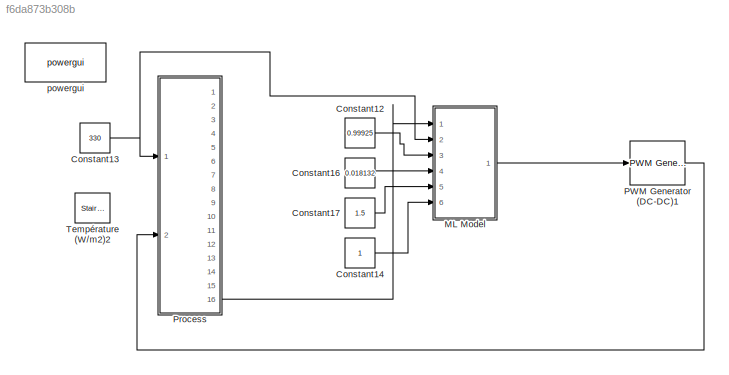
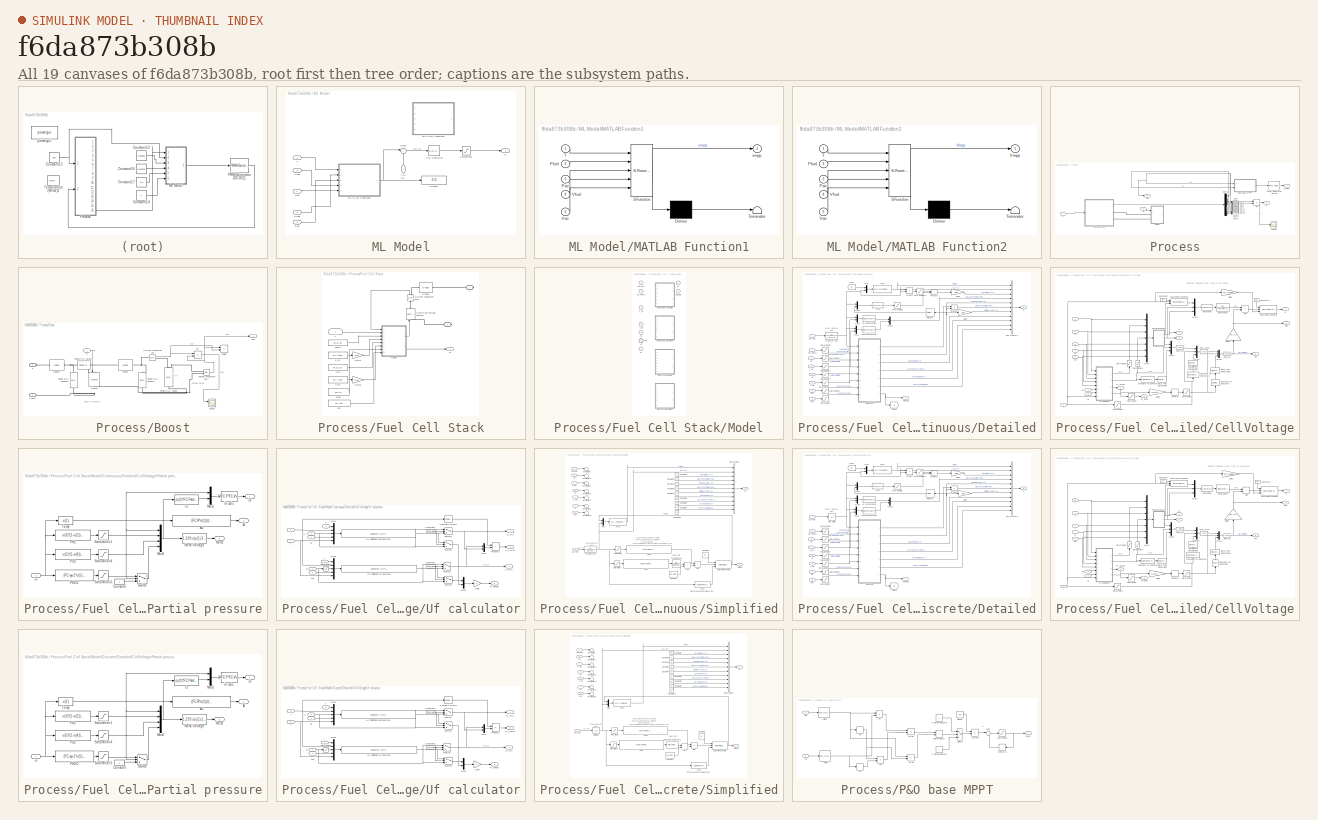
[diagram: thumbnail index - all 19 canvases of the model, root first then tree order]
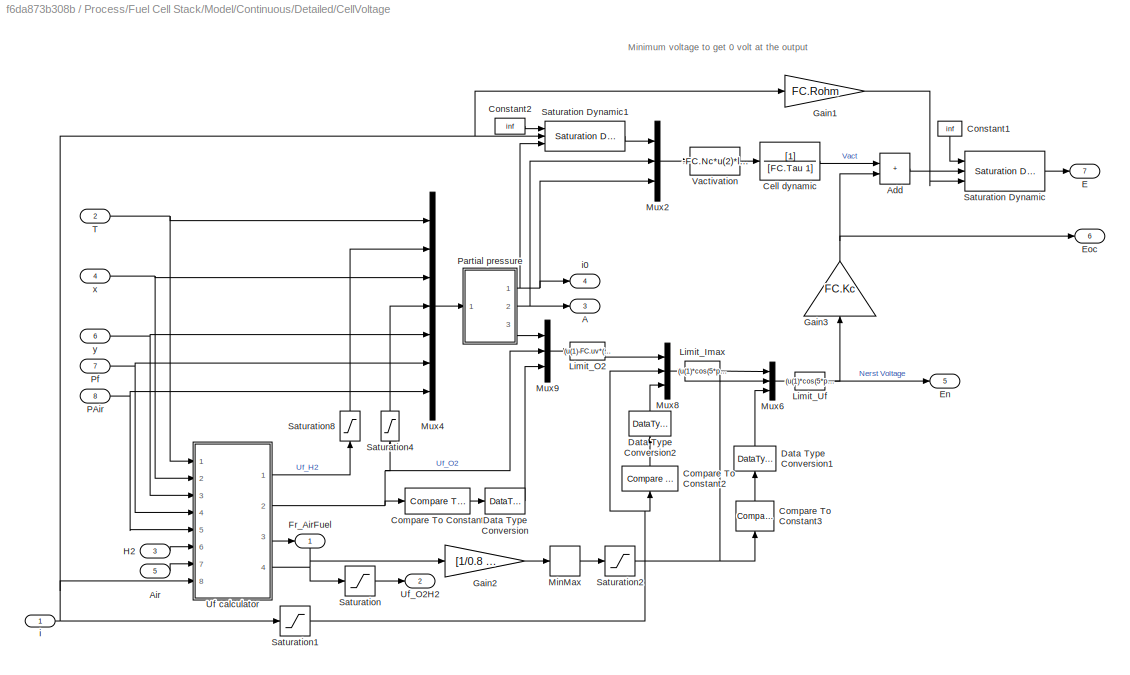
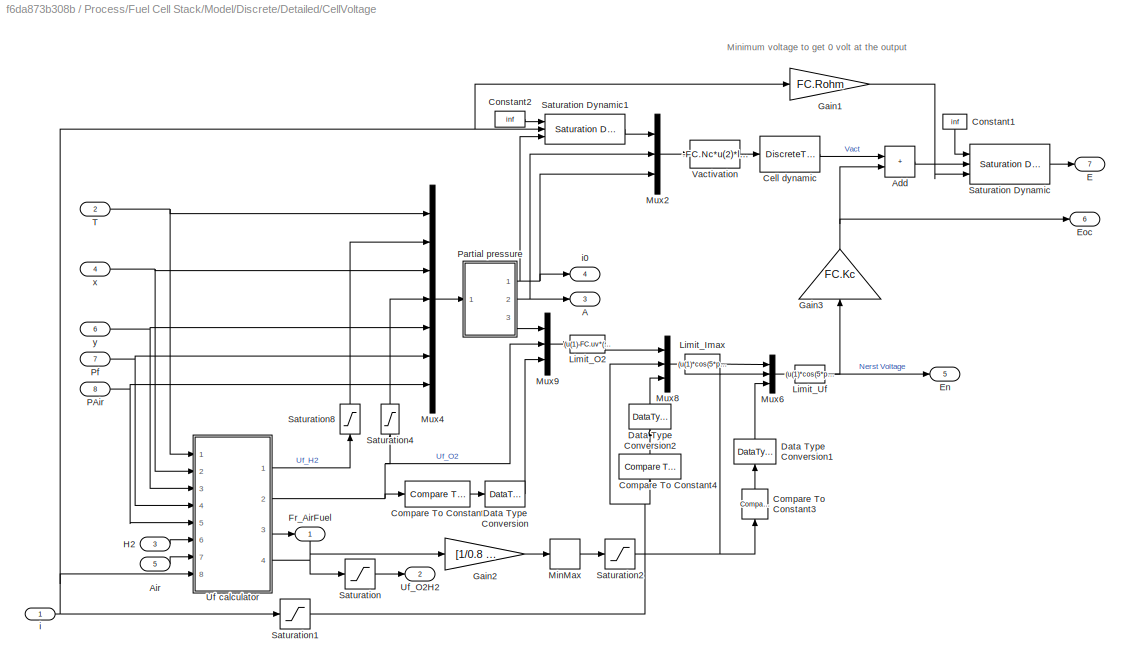
MODEL slx_f6da873b308b
KIND model
CONFIG AbsTol = auto
CONFIG EnableMultiTasking = off
CONFIG FixedStep = 1e-6
CONFIG MaxStep = auto
CONFIG MinStep = auto
CONFIG RelTol = 1e-3
CONFIG SampleTimeConstraint = Unconstrained
CONFIG SolverName = FixedStepAuto
CONFIG StartTime = 0.0
CONFIG StopTime = 0.3
BLOCK [Constant] Constant12
  Value = 0.99925
BLOCK [Constant] Constant13
  Value = 330
BLOCK [Constant] Constant14
BLOCK [Constant] Constant16
  Value = 0.018132
BLOCK [Constant] Constant17
  Value = 1.5
BLOCK [SubSystem] ML Model
  Ports = [6, 1]
BLOCK [Outport] ML Model/D
BLOCK [Display] ML Model/Display
  Decimation = 1
  Ports = [1]
BLOCK [SubSystem] ML Model/MATLAB Function1
  ErrorFcn = Stateflow.Translate.translate
  PermitHierarchicalResolution = ExplicitOnly
  Ports = [5, 1]
  SFBlockType = MATLAB Function
  TreatAsAtomicUnit = on
BLOCK [Demux] ML Model/MATLAB Function1/ Demux 
  Outputs = 1
  Ports = [1, 1]
BLOCK [S-Function] ML Model/MATLAB Function1/ SFunction 
  EnableBusSupport = on
  FunctionName = sf_sfun
  PortCounts = [5 2]
  Ports = [5, 2]
  SFcnIsStateOwnerBlock = off
  SFunctionDeploymentMode = off
  Tag = Stateflow S-Function 3
BLOCK [Terminator] ML Model/MATLAB Function1/ Terminator 
BLOCK [Inport] ML Model/MATLAB Function1/Pair
  Port = 3
BLOCK [Inport] ML Model/MATLAB Function1/Pfuel
  Port = 2
BLOCK [Inport] ML Model/MATLAB Function1/T
BLOCK [Inport] ML Model/MATLAB Function1/Vair
  Port = 5
BLOCK [Inport] ML Model/MATLAB Function1/Vfuel
  Port = 4
BLOCK [Outport] ML Model/MATLAB Function1/vmpp
BLOCK [SubSystem] ML Model/MATLAB Function2
  Commented = on
  ErrorFcn = Stateflow.Translate.translate
  PermitHierarchicalResolution = ExplicitOnly
  Ports = [5, 1]
  SFBlockType = MATLAB Function
  TreatAsAtomicUnit = on
BLOCK [Demux] ML Model/MATLAB Function2/ Demux 
  Outputs = 1
  Ports = [1, 1]
BLOCK [S-Function] ML Model/MATLAB Function2/ SFunction 
  EnableBusSupport = on
  FunctionName = sf_sfun
  PortCounts = [5 2]
  Ports = [5, 2]
  SFcnIsStateOwnerBlock = off
  SFunctionDeploymentMode = off
  Tag = Stateflow S-Function 2
BLOCK [Terminator] ML Model/MATLAB Function2/ Terminator 
BLOCK [Inport] ML Model/MATLAB Function2/Pair
  Port = 3
BLOCK [Inport] ML Model/MATLAB Function2/Pfuel
  Port = 2
BLOCK [Inport] ML Model/MATLAB Function2/T
BLOCK [Inport] ML Model/MATLAB Function2/Vair
  Port = 5
BLOCK [Inport] ML Model/MATLAB Function2/Vfuel
  Port = 4
BLOCK [Outport] ML Model/MATLAB Function2/Vmpp
BLOCK [Reference] ML Model/PID Controller  REF=pid_lib/PID Controller
  Ports = [1, 1]
  SourceBlock = pid_lib/PID Controller
  SourceType = PID 1dof
BLOCK [Inport] ML Model/Pair
  Port = 6
BLOCK [Inport] ML Model/Pfuel
  Port = 5
BLOCK [Saturate] ML Model/Saturation1
  LowerLimit = 0.1
  UpperLimit = 0.9
BLOCK [Sum] ML Model/Sum2
  Inputs = |+-
  Ports = [2, 1]
BLOCK [Inport] ML Model/T
  Port = 2
BLOCK [Inport] ML Model/Vair
  Port = 4
BLOCK [Inport] ML Model/Vfuel
  Port = 3
BLOCK [Inport] ML Model/Vin
  NameLocation = right
BLOCK [Reference] PWM Generator (DC-DC)1  REF=powerlib_meascontrol/Pulse & Signal Generators/PWM Generator (DC-DC)
  Ports = [1, 1]
  SourceBlock = powerlib_meascontrol/Pulse & Signal Generators/PWM Generator (DC-DC)
  SourceType = PWM Generator (DC-DC)
BLOCK [SubSystem] Process
  Ports = [2, 16]
BLOCK [SubSystem] Process/Boost
  Ports = [1, 1, 0, 0, 0, 2]
BLOCK [PMIOPort] Process/Boost/Conn2
  Port = 2
  Side = Left
BLOCK [Reference] Process/Boost/Current Measurement  REF=powerlib/Measurements/Current Measurement
  Ports = [0, 1, 0, 0, 0, 1, 1]
  SourceBlock = powerlib/Measurements/Current Measurement
  SourceType = Current Measurement
  UserDataPersistent = on
BLOCK [Reference] Process/Boost/Diode  REF=powerlib/Power Electronics/Diode
  Ports = [0, 0, 0, 0, 0, 1, 1]
  SourceBlock = powerlib/Power Electronics/Diode
  SourceType = Diode
BLOCK [Reference] Process/Boost/Diode1  REF=powerlib/Power Electronics/Diode
  Ports = [0, 0, 0, 0, 0, 1, 1]
  SourceBlock = powerlib/Power Electronics/Diode
  SourceType = Diode
BLOCK [Product] Process/Boost/Divide
  Inputs = */
  Ports = [2, 1]
BLOCK [Product] Process/Boost/E1
  Inputs = **
  NameLocation = top
  Ports = [2, 1]
BLOCK [Reference] Process/Boost/Mosfet  REF=powerlib/Power Electronics/Mosfet
  NameLocation = left
  Ports = [1, 0, 0, 0, 0, 1, 1]
  SourceBlock = powerlib/Power Electronics/Mosfet
  SourceType = Mosfet
BLOCK [Scope] Process/Boost/Scope
  Floating = off
  NumInputPorts = 2
  Ports = [2]
  ScopeSpecificationString = Simulink.scopes.TimeScopeBlockCfg('CurrentConfiguration', extmgr.ConfigurationSet(extmgr.Configuration('Core','General UI',true),extmgr.Configuration('Sources','WiredSimulink',true),extmgr.Configuration('Visuals','Time Domain',true,'SerializedDisplays',{struct('MinYLimReal','-250.3374','MaxYLimReal','2253.0368','YLabelReal','','MinYLimMag','0','MaxYLimMag','2253.0368','LegendVisibility','On','XGri...<+1303ch>
BLOCK [Reference] Process/Boost/Series RLC Branch  REF=powerlib/Elements/Series RLC Branch
  Ports = [0, 0, 0, 0, 0, 1, 1]
  SourceBlock = powerlib/Elements/Series RLC Branch
  SourceType = Series RLC Branch
BLOCK [Reference] Process/Boost/Series RLC Branch1  REF=powerlib/Elements/Series RLC Branch
  NameLocation = left
  Ports = [0, 0, 0, 0, 0, 1, 1]
  SourceBlock = powerlib/Elements/Series RLC Branch
  SourceType = Series RLC Branch
BLOCK [Reference] Process/Boost/Series RLC Branch4  REF=powerlib/Elements/Series RLC Branch
  NameLocation = left
  Ports = [0, 0, 0, 0, 0, 1, 1]
  SourceBlock = powerlib/Elements/Series RLC Branch
  SourceType = Series RLC Branch
BLOCK [Reference] Process/Boost/Series RLC Load1  REF=powerlib/Elements/Series RLC Load
  AttributesFormatString = \n
  NameLocation = left
  Ports = [0, 0, 0, 0, 0, 1, 1]
  SourceBlock = powerlib/Elements/Series RLC Load
  SourceType = Series RLC Load
BLOCK [Reference] Process/Boost/Voltage Measurement1  REF=powerlib/Measurements/Voltage Measurement
  Ports = [0, 1, 0, 0, 0, 2]
  SourceBlock = powerlib/Measurements/Voltage Measurement
  SourceType = Voltage Measurement
  UserDataPersistent = on
BLOCK [Outport] Process/Boost/Vout
BLOCK [PMIOPort] Process/Boost/a
  Side = Left
BLOCK [Inport] Process/Boost/g
BLOCK [Outport] Process/D_P&O
BLOCK [Demux] Process/Demux
  DisplayOption = none
  Outputs = 15
  Ports = [1, 15]
BLOCK [SubSystem] Process/Fuel Cell Stack
  AncestorBlock = sps_lib/Sources/Fuel Cell Stack
  CloseFcn = sps_rtmsupport('CloseFcn',gcbh);
  CopyFcn = sps_rtmsupport('CopyFcn',gcbh);
  DeleteFcn = sps_rtmsupport('DeleteFcn',gcbh);
  DialogController = POWERSYS.PowerSysDialog
  LoadFcn = sps_rtmsupport('LoadFcn',gcbh);FuelCellLoadFcn(gcb)
  ModelCloseFcn = sps_rtmsupport('ModelCloseFcn',gcbh);
  NameChangeFcn = sps_rtmsupport('NameChangeFcn',gcbh);
  OpenFcn = sps_rtmsupport('OpenFcn',gcbh, [1 2 3 13 14 15 16 17 18 19 20]);
  Ports = [1, 1, 0, 0, 0, 0, 2]
  PostSaveFcn = sps_rtmsupport('PostSaveFcn',gcbh);
  PreCopyFcn = sps_rtmsupport('PreCopyFcn',gcbh);
  PreDeleteFcn = sps_rtmsupport('PreDeleteFcn',gcbh);
  PreSaveFcn = sps_rtmsupport('PreSaveFcn',gcbh);
  StartFcn = sps_rtmsupport('StartFcn',gcbh);
  StopFcn = sps_rtmsupport('StopFcn',gcbh);
  UndoDeleteFcn = sps_rtmsupport('UndoDeleteFcn',gcbh);
BLOCK [PMIOPort] Process/Fuel Cell Stack/+
  NameLocation = top
  Side = Right
  Tag = PMCPort
BLOCK [PMIOPort] Process/Fuel Cell Stack/-
  NameLocation = top
  Port = 2
  Side = Right
  Tag = PMCPort
BLOCK [Constant] Process/Fuel Cell Stack/AirFr
  Value = FC.Uf_O2
BLOCK [Reference] Process/Fuel Cell Stack/Controlled Voltage Source1  REF=powerlib/Electrical Sources/Controlled Voltage Source
  NameLocation = right
  Ports = [1, 0, 0, 0, 0, 1, 1]
  SourceBlock = powerlib/Electrical Sources/Controlled Voltage Source
  SourceType = Controlled Voltage Source
BLOCK [Reference] Process/Fuel Cell Stack/Current Measurement1  REF=powerlib/Measurements/Current Measurement
  NameLocation = right
  Ports = [0, 1, 0, 0, 0, 1, 1]
  SourceBlock = powerlib/Measurements/Current Measurement
  SourceType = Current Measurement
BLOCK [Reference] Process/Fuel Cell Stack/Diode1  REF=powerlib/Power Electronics/Diode
  Ports = [0, 0, 0, 0, 0, 1, 1]
  SourceBlock = powerlib/Power Electronics/Diode
  SourceType = Diode
BLOCK [Constant] Process/Fuel Cell Stack/FuelFr
  Value = FC.Uf_H2
BLOCK [Gain] Process/Fuel Cell Stack/Gain1
  Gain = 0.01
BLOCK [Gain] Process/Fuel Cell Stack/Gain3
  Gain = 0.01
BLOCK [SubSystem] Process/Fuel Cell Stack/Model
  AncestorBlock = sps_lib/Sources/Fuel Cell Stack/Model
  AttributesFormatString = %<BlockChoice>
  LabelModeActiveChoice = Discrete/Detailed
  Ports = [8, 2]
  Variant = on
  VariantControlMode = label
BLOCK [Inport] Process/Fuel Cell Stack/Model/Air
  Port = 5
BLOCK [SubSystem] Process/Fuel Cell Stack/Model/Continuous//Detailed
  NameLocation = top
  Ports = [8, 2]
  VariantControl = Continuous/Detailed
BLOCK [Inport] Process/Fuel Cell Stack/Model/Continuous//Detailed/Air
  NameLocation = top
  Port = 5
BLOCK [Fcn] Process/Fuel Cell Stack/Model/Continuous//Detailed/Air consumption
  Expr = 60000*FC.Nc*u(1)*FC.R*FC.Tstd/(4*FC.F*FC.Pstd*u(2))
BLOCK [BusCreator] Process/Fuel Cell Stack/Model/Continuous//Detailed/Bus Creator1
  DisplayOption = bar
  InheritFromInputs = on
  Inputs = 11
  Ports = [11, 1]
BLOCK [SubSystem] Process/Fuel Cell Stack/Model/Continuous//Detailed/CellVoltage
  Ports = [8, 7]
BLOCK [Outport] Process/Fuel Cell Stack/Model/Continuous//Detailed/CellVoltage/A
  Port = 3
  VectorParamsAs1DForOutWhenUnconnected = off
BLOCK [Sum] Process/Fuel Cell Stack/Model/Continuous//Detailed/CellVoltage/Add
  IconShape = rectangular
  Ports = [2, 1]
BLOCK [Inport] Process/Fuel Cell Stack/Model/Continuous//Detailed/CellVoltage/Air
  Port = 5
BLOCK [TransferFcn] Process/Fuel Cell Stack/Model/Continuous//Detailed/CellVoltage/Cell dynamic
  Denominator = [FC.Tau 1]
BLOCK [Reference] Process/Fuel Cell Stack/Model/Continuous//Detailed/CellVoltage/Compare To Constant  REF=simulink/Logic and Bit
Operations/Compare
To Constant
  Ports = [1, 1]
  SourceBlock = simulink/Logic and Bit\nOperations/Compare\nTo Constant
  SourceType = Compare To Constant
BLOCK [Reference] Process/Fuel Cell Stack/Model/Continuous//Detailed/CellVoltage/Compare To Constant2  REF=simulink/Logic and Bit
Operations/Compare
To Constant
  NameLocation = right
  Ports = [1, 1]
  SourceBlock = simulink/Logic and Bit\nOperations/Compare\nTo Constant
  SourceType = Compare To Constant
BLOCK [Reference] Process/Fuel Cell Stack/Model/Continuous//Detailed/CellVoltage/Compare To Constant3  REF=simulink/Logic and Bit
Operations/Compare
To Constant
  NameLocation = right
  Ports = [1, 1]
  SourceBlock = simulink/Logic and Bit\nOperations/Compare\nTo Constant
  SourceType = Compare To Constant
BLOCK [Constant] Process/Fuel Cell Stack/Model/Continuous//Detailed/CellVoltage/Constant1
  NameLocation = left
  Value = inf
BLOCK [Constant] Process/Fuel Cell Stack/Model/Continuous//Detailed/CellVoltage/Constant2
  Value = inf
BLOCK [DataTypeConversion] Process/Fuel Cell Stack/Model/Continuous//Detailed/CellVoltage/Data Type Conversion
  RndMeth = Floor
  SaturateOnIntegerOverflow = off
BLOCK [DataTypeConversion] Process/Fuel Cell Stack/Model/Continuous//Detailed/CellVoltage/Data Type Conversion1
  NameLocation = right
  RndMeth = Floor
  SaturateOnIntegerOverflow = off
BLOCK [DataTypeConversion] Process/Fuel Cell Stack/Model/Continuous//Detailed/CellVoltage/Data Type Conversion2
  NameLocation = right
  RndMeth = Floor
  SaturateOnIntegerOverflow = off
BLOCK [Outport] Process/Fuel Cell Stack/Model/Continuous//Detailed/CellVoltage/E
  Port = 7
  VectorParamsAs1DForOutWhenUnconnected = off
BLOCK [Outport] Process/Fuel Cell Stack/Model/Continuous//Detailed/CellVoltage/En
  Port = 5
  VectorParamsAs1DForOutWhenUnconnected = off
BLOCK [Outport] Process/Fuel Cell Stack/Model/Continuous//Detailed/CellVoltage/Eoc
  Port = 6
  VectorParamsAs1DForOutWhenUnconnected = off
BLOCK [Outport] Process/Fuel Cell Stack/Model/Continuous//Detailed/CellVoltage/Fr_AirFuel
  VectorParamsAs1DForOutWhenUnconnected = off
BLOCK [Gain] Process/Fuel Cell Stack/Model/Continuous//Detailed/CellVoltage/Gain1
  Gain = FC.Rohm
  NameLocation = top
BLOCK [Gain] Process/Fuel Cell Stack/Model/Continuous//Detailed/CellVoltage/Gain2
  Gain = [1/0.8 1]
  NameLocation = top
BLOCK [Gain] Process/Fuel Cell Stack/Model/Continuous//Detailed/CellVoltage/Gain3
  Gain = FC.Kc
  NameLocation = left
BLOCK [Inport] Process/Fuel Cell Stack/Model/Continuous//Detailed/CellVoltage/H2
  NameLocation = top
  Port = 3
BLOCK [Fcn] Process/Fuel Cell Stack/Model/Continuous//Detailed/CellVoltage/Limit_Imax
  Expr = (u(1)*cos(5*pi/2*(u(2)/FC.Imax-1)))*u(3)+u(1)*(1-u(3) )
  NameLocation = top
BLOCK [Fcn] Process/Fuel Cell Stack/Model/Continuous//Detailed/CellVoltage/Limit_O2
  Expr = (u(1)-FC.uv*(u(2)-FC.Uf_O2)/(FC.Kc*(FC.ufO2max-FC.Uf_O2)))*u(3)+ u(1)*(1-u(3))
BLOCK [Fcn] Process/Fuel Cell Stack/Model/Continuous//Detailed/CellVoltage/Limit_Uf
  Expr = (u(1)*cos(5*pi/2*(u(2)-1)))*u(3)+u(1)*(1-u(3))
BLOCK [MinMax] Process/Fuel Cell Stack/Model/Continuous//Detailed/CellVoltage/MinMax
  Function = max
  Ports = [1, 1]
BLOCK [Mux] Process/Fuel Cell Stack/Model/Continuous//Detailed/CellVoltage/Mux2
  DisplayOption = bar
  Inputs = 3
  Ports = [3, 1]
BLOCK [Mux] Process/Fuel Cell Stack/Model/Continuous//Detailed/CellVoltage/Mux4
  DisplayOption = bar
  Inputs = 7
  Ports = [7, 1]
BLOCK [Mux] Process/Fuel Cell Stack/Model/Continuous//Detailed/CellVoltage/Mux6
  DisplayOption = bar
  Inputs = 3
  Ports = [3, 1]
BLOCK [Mux] Process/Fuel Cell Stack/Model/Continuous//Detailed/CellVoltage/Mux8
  DisplayOption = bar
  Inputs = 3
  Ports = [3, 1]
BLOCK [Mux] Process/Fuel Cell Stack/Model/Continuous//Detailed/CellVoltage/Mux9
  DisplayOption = bar
  Inputs = 3
  Ports = [3, 1]
BLOCK [Inport] Process/Fuel Cell Stack/Model/Continuous//Detailed/CellVoltage/PAir
  Port = 8
BLOCK [SubSystem] Process/Fuel Cell Stack/Model/Continuous//Detailed/CellVoltage/Partial pressure
  Ports = [1, 3]
BLOCK [Outport] Process/Fuel Cell Stack/Model/Continuous//Detailed/CellVoltage/Partial pressure/A
  Port = 2
  VectorParamsAs1DForOutWhenUnconnected = off
BLOCK [Fcn] Process/Fuel Cell Stack/Model/Continuous//Detailed/CellVoltage/Partial pressure/A2
  Expr = (FC.R*u(1))/(2*FC.alpha*FC.F)
BLOCK [Constant] Process/Fuel Cell Stack/Model/Continuous//Detailed/CellVoltage/Partial pressure/Constant
BLOCK [Fcn] Process/Fuel Cell Stack/Model/Continuous//Detailed/CellVoltage/Partial pressure/Cr
  Expr = (u(2)*FC.Pstd+u(3)*FC.Pstd)/(FC.R*u(1))
BLOCK [Mux] Process/Fuel Cell Stack/Model/Continuous//Detailed/CellVoltage/Partial pressure/Mux1
  DisplayOption = bar
  Inputs = 2
  Ports = [2, 1]
BLOCK [Mux] Process/Fuel Cell Stack/Model/Continuous//Detailed/CellVoltage/Partial pressure/Mux2
  DisplayOption = bar
  Ports = [4, 1]
BLOCK [Outport] Process/Fuel Cell Stack/Model/Continuous//Detailed/CellVoltage/Partial pressure/Nerst
  Port = 3
  VectorParamsAs1DForOutWhenUnconnected = off
BLOCK [Fcn] Process/Fuel Cell Stack/Model/Continuous//Detailed/CellVoltage/Partial pressure/Nerst Voltage
  Expr = 1.229+(u(1)-298.15)*(-44.43/(FC.z*FC.F))+(FC.R*u(1)/(FC.z*FC.F))*(log(u(2)*sqrt(u(3))/u(4)))
BLOCK [Fcn] Process/Fuel Cell Stack/Model/Continuous//Detailed/CellVoltage/Partial pressure/PH2
  Expr = u(3)*(1-u(2))*u(6)
BLOCK [Fcn] Process/Fuel Cell Stack/Model/Continuous//Detailed/CellVoltage/Partial pressure/PH2O
  Expr = (FC.xy+2*u(5)*u(4))*u(7)
BLOCK [Fcn] Process/Fuel Cell Stack/Model/Continuous//Detailed/CellVoltage/Partial pressure/PO2
  Expr = u(5)*(1-u(4))*u(7)
BLOCK [Saturate] Process/Fuel Cell Stack/Model/Continuous//Detailed/CellVoltage/Partial pressure/Saturation1
  LowerLimit = 0.0001
  UpperLimit = inf
BLOCK [Saturate] Process/Fuel Cell Stack/Model/Continuous//Detailed/CellVoltage/Partial pressure/Saturation4
  LowerLimit = 0.0001
  UpperLimit = inf
BLOCK [Saturate] Process/Fuel Cell Stack/Model/Continuous//Detailed/CellVoltage/Partial pressure/Saturation5
  LowerLimit = 0.0001
  UpperLimit = inf
BLOCK [Switch] Process/Fuel Cell Stack/Model/Continuous//Detailed/CellVoltage/Partial pressure/Switch
  InputSameDT = off
  SaturateOnIntegerOverflow = off
  Threshold = 273+100
BLOCK [Fcn] Process/Fuel Cell Stack/Model/Continuous//Detailed/CellVoltage/Partial pressure/Temp
  Expr = u(1)
  NameLocation = top
BLOCK [Outport] Process/Fuel Cell Stack/Model/Continuous//Detailed/CellVoltage/Partial pressure/i0
  VectorParamsAs1DForOutWhenUnconnected = off
BLOCK [Fcn] Process/Fuel Cell Stack/Model/Continuous//Detailed/CellVoltage/Partial pressure/i0 calc
  Expr = 2*FC.F*FC.k*u(1)*u(2)*exp(-FC.Dg/(FC.R*u(1)))/FC.h
BLOCK [Inport] Process/Fuel Cell Stack/Model/Continuous//Detailed/CellVoltage/Partial pressure/in
BLOCK [Inport] Process/Fuel Cell Stack/Model/Continuous//Detailed/CellVoltage/Pf
  Port = 7
BLOCK [Saturate] Process/Fuel Cell Stack/Model/Continuous//Detailed/CellVoltage/Saturation
  LowerLimit = 0.0001
  UpperLimit = 0.9999
BLOCK [Reference] Process/Fuel Cell Stack/Model/Continuous//Detailed/CellVoltage/Saturation Dynamic  REF=simulink/Discontinuities/Saturation
Dynamic
  Ports = [3, 1]
  SourceBlock = simulink/Discontinuities/Saturation\nDynamic
  SourceType = Saturation Dynamic
BLOCK [Reference] Process/Fuel Cell Stack/Model/Continuous//Detailed/CellVoltage/Saturation Dynamic1  REF=simulink/Discontinuities/Saturation
Dynamic
  Ports = [3, 1]
  SourceBlock = simulink/Discontinuities/Saturation\nDynamic
  SourceType = Saturation Dynamic
BLOCK [Saturate] Process/Fuel Cell Stack/Model/Continuous//Detailed/CellVoltage/Saturation1
  LowerLimit = 0
  UpperLimit = FC.Imax*1.2
BLOCK [Saturate] Process/Fuel Cell Stack/Model/Continuous//Detailed/CellVoltage/Saturation2
  LowerLimit = 0
  UpperLimit = 1.2
BLOCK [Saturate] Process/Fuel Cell Stack/Model/Continuous//Detailed/CellVoltage/Saturation4
  LowerLimit = 0
  NameLocation = right
  UpperLimit = FC.Uf_O2
BLOCK [Saturate] Process/Fuel Cell Stack/Model/Continuous//Detailed/CellVoltage/Saturation8
  LowerLimit = 0
  NameLocation = right
  UpperLimit = FC.Uf_H2
BLOCK [Inport] Process/Fuel Cell Stack/Model/Continuous//Detailed/CellVoltage/T
  Port = 2
BLOCK [SubSystem] Process/Fuel Cell Stack/Model/Continuous//Detailed/CellVoltage/Uf calculator
  Ports = [8, 4]
BLOCK [Inport] Process/Fuel Cell Stack/Model/Continuous//Detailed/CellVoltage/Uf calculator/Air
  NameLocation = top
  Port = 7
BLOCK [Reference] Process/Fuel Cell Stack/Model/Continuous//Detailed/CellVoltage/Uf calculator/Compare To Zero  REF=simulink/Logic and Bit
Operations/Compare
To Zero
  Ports = [1, 1]
  SourceBlock = simulink/Logic and Bit\nOperations/Compare\nTo Zero
  SourceType = Compare To Zero
BLOCK [Constant] Process/Fuel Cell Stack/Model/Continuous//Detailed/CellVoltage/Uf calculator/Constant1
  Value = FC.sel_UfH2
BLOCK [Constant] Process/Fuel Cell Stack/Model/Continuous//Detailed/CellVoltage/Uf calculator/Constant2
  Value = FC.sel_UfO2
BLOCK [Outport] Process/Fuel Cell Stack/Model/Continuous//Detailed/CellVoltage/Uf calculator/Fr_AirFuel
  Port = 3
  VectorParamsAs1DForOutWhenUnconnected = off
BLOCK [Gain] Process/Fuel Cell Stack/Model/Continuous//Detailed/CellVoltage/Uf calculator/Gain
BLOCK [Inport] Process/Fuel Cell Stack/Model/Continuous//Detailed/CellVoltage/Uf calculator/H2
  NameLocation = top
  Port = 6
BLOCK [Fcn] Process/Fuel Cell Stack/Model/Continuous//Detailed/CellVoltage/Uf calculator/H2 utilization Fuel flowrate
  Expr = 60000*FC.Nc*u(2)*FC.R*u(5)/(FC.z*FC.F*u(4)*FC.Pstd*u(3)*u(1))
BLOCK [Mux] Process/Fuel Cell Stack/Model/Continuous//Detailed/CellVoltage/Uf calculator/Mux1
  DisplayOption = bar
  Inputs = 5
  Ports = [5, 1]
BLOCK [Mux] Process/Fuel Cell Stack/Model/Continuous//Detailed/CellVoltage/Uf calculator/Mux5
  DisplayOption = bar
  Inputs = 5
  Ports = [5, 1]
BLOCK [Mux] Process/Fuel Cell Stack/Model/Continuous//Detailed/CellVoltage/Uf calculator/Mux6
  DisplayOption = bar
  Inputs = 2
  Ports = [2, 1]
BLOCK [Mux] Process/Fuel Cell Stack/Model/Continuous//Detailed/CellVoltage/Uf calculator/Mux7
  DisplayOption = bar
  Inputs = 2
  Ports = [2, 1]
BLOCK [Fcn] Process/Fuel Cell Stack/Model/Continuous//Detailed/CellVoltage/Uf calculator/O2 utilization Air flowrate
  Expr = 60000*FC.Nc*u(2)*FC.R*u(5)/(4*FC.F*u(4)*FC.Pstd*u(3)*u(1))
BLOCK [Inport] Process/Fuel Cell Stack/Model/Continuous//Detailed/CellVoltage/Uf calculator/PAir
  Port = 5
BLOCK [Inport] Process/Fuel Cell Stack/Model/Continuous//Detailed/CellVoltage/Uf calculator/Pf
  Port = 4
BLOCK [Product] Process/Fuel Cell Stack/Model/Continuous//Detailed/CellVoltage/Uf calculator/Product2
  Ports = [2, 1]
  RndMeth = Zero
BLOCK [Saturate] Process/Fuel Cell Stack/Model/Continuous//Detailed/CellVoltage/Uf calculator/Saturation3
  LowerLimit = FC.AirFr_Max*0.01
  UpperLimit = inf
BLOCK [Switch] Process/Fuel Cell Stack/Model/Continuous//Detailed/CellVoltage/Uf calculator/Switch1
  Criteria = u2 > Threshold
  InputSameDT = off
  SaturateOnIntegerOverflow = off
  Threshold = 0.5
BLOCK [Switch] Process/Fuel Cell Stack/Model/Continuous//Detailed/CellVoltage/Uf calculator/Switch2
  Criteria = u2 > Threshold
  InputSameDT = off
  SaturateOnIntegerOverflow = off
  Threshold = 0.5
BLOCK [Switch] Process/Fuel Cell Stack/Model/Continuous//Detailed/CellVoltage/Uf calculator/Switch3
  Criteria = u2 > Threshold
  InputSameDT = off
  SaturateOnIntegerOverflow = off
  Threshold = 0.5
BLOCK [Switch] Process/Fuel Cell Stack/Model/Continuous//Detailed/CellVoltage/Uf calculator/Switch4
  Criteria = u2 > Threshold
  InputSameDT = off
  SaturateOnIntegerOverflow = off
  Threshold = 0.5
BLOCK [Inport] Process/Fuel Cell Stack/Model/Continuous//Detailed/CellVoltage/Uf calculator/T
BLOCK [Outport] Process/Fuel Cell Stack/Model/Continuous//Detailed/CellVoltage/Uf calculator/Uf_H2
  VectorParamsAs1DForOutWhenUnconnected = off
BLOCK [Outport] Process/Fuel Cell Stack/Model/Continuous//Detailed/CellVoltage/Uf calculator/Uf_O2
  Port = 2
  VectorParamsAs1DForOutWhenUnconnected = off
BLOCK [Outport] Process/Fuel Cell Stack/Model/Continuous//Detailed/CellVoltage/Uf calculator/Uf_O2H2
  Port = 4
  VectorParamsAs1DForOutWhenUnconnected = off
BLOCK [Inport] Process/Fuel Cell Stack/Model/Continuous//Detailed/CellVoltage/Uf calculator/i
  Port = 8
BLOCK [Inport] Process/Fuel Cell Stack/Model/Continuous//Detailed/CellVoltage/Uf calculator/x
  NameLocation = top
  Port = 2
BLOCK [Inport] Process/Fuel Cell Stack/Model/Continuous//Detailed/CellVoltage/Uf calculator/y
  NameLocation = top
  Port = 3
BLOCK [Outport] Process/Fuel Cell Stack/Model/Continuous//Detailed/CellVoltage/Uf_O2H2
  Port = 2
  VectorParamsAs1DForOutWhenUnconnected = off
BLOCK [Fcn] Process/Fuel Cell Stack/Model/Continuous//Detailed/CellVoltage/Vactivation
  Expr = -FC.Nc*u(2)*ln(u(1))+FC.Nc*u(2)*ln(u(3))
BLOCK [Inport] Process/Fuel Cell Stack/Model/Continuous//Detailed/CellVoltage/i
BLOCK [Outport] Process/Fuel Cell Stack/Model/Continuous//Detailed/CellVoltage/i0
  NameLocation = top
  Port = 4
  VectorParamsAs1DForOutWhenUnconnected = off
BLOCK [Inport] Process/Fuel Cell Stack/Model/Continuous//Detailed/CellVoltage/x
  Port = 4
BLOCK [Inport] Process/Fuel Cell Stack/Model/Continuous//Detailed/CellVoltage/y
  Port = 6
BLOCK [Inport] Process/Fuel Cell Stack/Model/Continuous//Detailed/Current
  NameLocation = top
BLOCK [Fcn] Process/Fuel Cell Stack/Model/Continuous//Detailed/Fcn2
  Expr = u(1)-FC.Rohm*u(2)
BLOCK [Fcn] Process/Fuel Cell Stack/Model/Continuous//Detailed/Fcn3
  Expr = FC.Nc*u(1)/(FC.z*FC.F*u(2))*FC.Dh0
BLOCK [From] Process/Fuel Cell Stack/Model/Continuous//Detailed/From
  GotoTag = E
  NameLocation = top
BLOCK [Fcn] Process/Fuel Cell Stack/Model/Continuous//Detailed/Fuel consumption
  Expr = 60000*FC.Nc*u(1)*FC.R*FC.Tstd/(FC.z*FC.F*FC.Pstd*u(2))
BLOCK [Gain] Process/Fuel Cell Stack/Model/Continuous//Detailed/Gain1
  Gain = 100
  NameLocation = top
BLOCK [Gain] Process/Fuel Cell Stack/Model/Continuous//Detailed/Gain3
  Gain = 100
  NameLocation = top
BLOCK [Goto] Process/Fuel Cell Stack/Model/Continuous//Detailed/Goto
  GotoTag = E
BLOCK [Inport] Process/Fuel Cell Stack/Model/Continuous//Detailed/H2
  NameLocation = top
  Port = 3
BLOCK [Mux] Process/Fuel Cell Stack/Model/Continuous//Detailed/Mux
  DisplayOption = bar
  Inputs = 2
  Ports = [2, 1]
BLOCK [Mux] Process/Fuel Cell Stack/Model/Continuous//Detailed/Mux1
  DisplayOption = bar
  Inputs = 2
  Ports = [2, 1]
BLOCK [Mux] Process/Fuel Cell Stack/Model/Continuous//Detailed/Mux3
  DisplayOption = bar
  Inputs = 2
  Ports = [2, 1]
BLOCK [Mux] Process/Fuel Cell Stack/Model/Continuous//Detailed/Mux4
  DisplayOption = bar
  Inputs = 2
  Ports = [2, 1]
BLOCK [Mux] Process/Fuel Cell Stack/Model/Continuous//Detailed/Mux6
  DisplayOption = bar
  Inputs = 2
  Ports = [2, 1]
BLOCK [Inport] Process/Fuel Cell Stack/Model/Continuous//Detailed/Op Temp
  NameLocation = top
  Port = 2
BLOCK [Inport] Process/Fuel Cell Stack/Model/Continuous//Detailed/PAir
  NameLocation = top
  Port = 8
BLOCK [Inport] Process/Fuel Cell Stack/Model/Continuous//Detailed/Pf
  NameLocation = top
  Port = 7
BLOCK [Product] Process/Fuel Cell Stack/Model/Continuous//Detailed/Product
  Ports = [2, 1]
  RndMeth = Zero
BLOCK [Product] Process/Fuel Cell Stack/Model/Continuous//Detailed/Product1
  Inputs = */
  Ports = [2, 1]
  RndMeth = Zero
BLOCK [Product] Process/Fuel Cell Stack/Model/Continuous//Detailed/Product2
  Ports = [2, 1]
  RndMeth = Zero
BLOCK [Saturate] Process/Fuel Cell Stack/Model/Continuous//Detailed/Saturation1
  LowerLimit = 0.0001
  UpperLimit = 0.9999
BLOCK [Saturate] Process/Fuel Cell Stack/Model/Continuous//Detailed/Saturation2
  LowerLimit = 0.0001
  UpperLimit = 0.9999
BLOCK [Saturate] Process/Fuel Cell Stack/Model/Continuous//Detailed/Saturation3
  LowerLimit = 1e-6
  UpperLimit = inf
BLOCK [Saturate] Process/Fuel Cell Stack/Model/Continuous//Detailed/Saturation4
  LowerLimit = 1e-3
  UpperLimit = inf
BLOCK [Saturate] Process/Fuel Cell Stack/Model/Continuous//Detailed/Saturation6
  LowerLimit = 0.001
  UpperLimit = inf
BLOCK [Saturate] Process/Fuel Cell Stack/Model/Continuous//Detailed/Saturation7
  LowerLimit = 0.001
  UpperLimit = inf
BLOCK [Saturate] Process/Fuel Cell Stack/Model/Continuous//Detailed/Saturation8
  LowerLimit = 200
  UpperLimit = inf
BLOCK [Selector] Process/Fuel Cell Stack/Model/Continuous//Detailed/Selector
  IndexOptions = Index vector (dialog)
  Indices = [2]
  InputPortWidth = 2
  NameLocation = top
  OutputSizes = 1
  Ports = [1, 1]
BLOCK [TransferFcn] Process/Fuel Cell Stack/Model/Continuous//Detailed/Transfer Fcn
  Denominator = [1e-6 1]
BLOCK [Outport] Process/Fuel Cell Stack/Model/Continuous//Detailed/Voltage
  VectorParamsAs1DForOutWhenUnconnected = off
BLOCK [Outport] Process/Fuel Cell Stack/Model/Continuous//Detailed/m
  Port = 2
  VectorParamsAs1DForOutWhenUnconnected = off
BLOCK [Inport] Process/Fuel Cell Stack/Model/Continuous//Detailed/x_H2
  NameLocation = top
  Port = 4
BLOCK [Inport] Process/Fuel Cell Stack/Model/Continuous//Detailed/y_O2
  NameLocation = top
  Port = 6
BLOCK [Saturate] Process/Fuel Cell Stack/Model/Continuous//Detailed/zero avoider
  LinearizeAsGain = off
  LowerLimit = 1e-6
  UpperLimit = inf
BLOCK [Saturate] Process/Fuel Cell Stack/Model/Continuous//Detailed/zero avoider2
  LinearizeAsGain = off
  LowerLimit = 0
  UpperLimit = inf
BLOCK [SubSystem] Process/Fuel Cell Stack/Model/Continuous//Simplified
  NameLocation = top
  Ports = [8, 2]
  VariantControl = Continuous/Simplified
BLOCK [Sum] Process/Fuel Cell Stack/Model/Continuous//Simplified/Add1
  IconShape = rectangular
  Ports = [2, 1]
BLOCK [Inport] Process/Fuel Cell Stack/Model/Continuous//Simplified/Air
  NameLocation = top
  Port = 5
BLOCK [BusCreator] Process/Fuel Cell Stack/Model/Continuous//Simplified/Bus Creator1
  DisplayOption = bar
  InheritFromInputs = on
  Inputs = 11
  Ports = [11, 1]
BLOCK [Constant] Process/Fuel Cell Stack/Model/Continuous//Simplified/Constant
  Value = FC.OCV
BLOCK [Constant] Process/Fuel Cell Stack/Model/Continuous//Simplified/Constant1
  Value = inf
BLOCK [Constant] Process/Fuel Cell Stack/Model/Continuous//Simplified/Constant10
  Value = 0
BLOCK [Constant] Process/Fuel Cell Stack/Model/Continuous//Simplified/Constant2
  Value = 0
BLOCK [Constant] Process/Fuel Cell Stack/Model/Continuous//Simplified/Constant3
  Value = 0
BLOCK [Constant] Process/Fuel Cell Stack/Model/Continuous//Simplified/Constant4
  Value = 0
BLOCK [Constant] Process/Fuel Cell Stack/Model/Continuous//Simplified/Constant5
  Value = 0
BLOCK [Constant] Process/Fuel Cell Stack/Model/Continuous//Simplified/Constant6
  Value = 0
BLOCK [Constant] Process/Fuel Cell Stack/Model/Continuous//Simplified/Constant7
  Value = 0
BLOCK [Constant] Process/Fuel Cell Stack/Model/Continuous//Simplified/Constant8
  Value = 0
BLOCK [Constant] Process/Fuel Cell Stack/Model/Continuous//Simplified/Constant9
  Value = 0
BLOCK [Inport] Process/Fuel Cell Stack/Model/Continuous//Simplified/Current
  NameLocation = top
BLOCK [Fcn] Process/Fuel Cell Stack/Model/Continuous//Simplified/Fcn1
  Expr = FC.Rohm*u(1)
BLOCK [Fcn] Process/Fuel Cell Stack/Model/Continuous//Simplified/Fcn2
  Expr = u(1)-FC.Rohm*u(2)
BLOCK [Inport] Process/Fuel Cell Stack/Model/Continuous//Simplified/H2
  NameLocation = top
  Port = 3
BLOCK [Product] Process/Fuel Cell Stack/Model/Continuous//Simplified/Mult
  Ports = [2, 1]
BLOCK [Mux] Process/Fuel Cell Stack/Model/Continuous//Simplified/Mux
  DisplayOption = bar
  Inputs = 2
  Ports = [2, 1]
BLOCK [Inport] Process/Fuel Cell Stack/Model/Continuous//Simplified/Op Temp
  NameLocation = top
  Port = 2
BLOCK [Inport] Process/Fuel Cell Stack/Model/Continuous//Simplified/PAir
  NameLocation = top
  Port = 8
BLOCK [Inport] Process/Fuel Cell Stack/Model/Continuous//Simplified/Pf
  NameLocation = top
  Port = 7
BLOCK [Reference] Process/Fuel Cell Stack/Model/Continuous//Simplified/Saturation Dynamic  REF=simulink/Discontinuities/Saturation
Dynamic
  Ports = [3, 1]
  SourceBlock = simulink/Discontinuities/Saturation\nDynamic
  SourceType = Saturation Dynamic
BLOCK [Saturate] Process/Fuel Cell Stack/Model/Continuous//Simplified/Saturation2
  LinearizeAsGain = off
  LowerLimit = FC.Il*FC.MaxCurRatio
  UpperLimit = FC.Il
BLOCK [Saturate] Process/Fuel Cell Stack/Model/Continuous//Simplified/Saturation5
  LinearizeAsGain = off
  LowerLimit = FC.i0nom
  UpperLimit = inf
BLOCK [Terminator] Process/Fuel Cell Stack/Model/Continuous//Simplified/Terminator
BLOCK [Terminator] Process/Fuel Cell Stack/Model/Continuous//Simplified/Terminator1
BLOCK [Terminator] Process/Fuel Cell Stack/Model/Continuous//Simplified/Terminator2
BLOCK [Terminator] Process/Fuel Cell Stack/Model/Continuous//Simplified/Terminator3
BLOCK [Terminator] Process/Fuel Cell Stack/Model/Continuous//Simplified/Terminator4
BLOCK [Terminator] Process/Fuel Cell Stack/Model/Continuous//Simplified/Terminator5
BLOCK [Terminator] Process/Fuel Cell Stack/Model/Continuous//Simplified/Terminator6
BLOCK [TransferFcn] Process/Fuel Cell Stack/Model/Continuous//Simplified/Transfer Fcn1
  Denominator = [FC.Tau 1]
BLOCK [TransferFcn] Process/Fuel Cell Stack/Model/Continuous//Simplified/Transfer Fcn2
  Denominator = [1e-6 1]
BLOCK [Fcn] Process/Fuel Cell Stack/Model/Continuous//Simplified/Vact
  Expr = -FC.NcAnom*ln(u(1))+FC.NcAnom*ln(FC.i0nom)
BLOCK [Fcn] Process/Fuel Cell Stack/Model/Continuous//Simplified/Vend
  Expr = cos(FC.Ksin*(u(1)/(FC.Il*FC.MaxCurRatio)-1))
BLOCK [Outport] Process/Fuel Cell Stack/Model/Continuous//Simplified/Voltage
  VectorParamsAs1DForOutWhenUnconnected = off
BLOCK [Outport] Process/Fuel Cell Stack/Model/Continuous//Simplified/m
  Port = 2
  VectorParamsAs1DForOutWhenUnconnected = off
BLOCK [Inport] Process/Fuel Cell Stack/Model/Continuous//Simplified/x_H2
  NameLocation = top
  Port = 4
BLOCK [Inport] Process/Fuel Cell Stack/Model/Continuous//Simplified/y_O2
  NameLocation = top
  Port = 6
BLOCK [Inport] Process/Fuel Cell Stack/Model/Current
BLOCK [SubSystem] Process/Fuel Cell Stack/Model/Discrete//Detailed
  NameLocation = top
  Ports = [8, 2]
  VariantControl = Discrete/Detailed
BLOCK [Inport] Process/Fuel Cell Stack/Model/Discrete//Detailed/Air
  NameLocation = top
  Port = 5
BLOCK [Fcn] Process/Fuel Cell Stack/Model/Discrete//Detailed/Air consumption
  Expr = 60000*FC.Nc*u(1)*FC.R*FC.Tstd/(4*FC.F*FC.Pstd*u(2))
BLOCK [BusCreator] Process/Fuel Cell Stack/Model/Discrete//Detailed/Bus Creator1
  DisplayOption = bar
  InheritFromInputs = on
  Inputs = 11
  Ports = [11, 1]
BLOCK [SubSystem] Process/Fuel Cell Stack/Model/Discrete//Detailed/CellVoltage
  Ports = [8, 7]
BLOCK [Outport] Process/Fuel Cell Stack/Model/Discrete//Detailed/CellVoltage/A
  Port = 3
  VectorParamsAs1DForOutWhenUnconnected = off
BLOCK [Sum] Process/Fuel Cell Stack/Model/Discrete//Detailed/CellVoltage/Add
  IconShape = rectangular
  Ports = [2, 1]
BLOCK [Inport] Process/Fuel Cell Stack/Model/Discrete//Detailed/CellVoltage/Air
  Port = 5
BLOCK [DiscreteTransferFcn] Process/Fuel Cell Stack/Model/Discrete//Detailed/CellVoltage/Cell dynamic
  Denominator = [1 -exp(-Ts/FC.Tau)]
  InputPortMap = u0
  Numerator = [1-exp(-Ts/FC.Tau)]
  Ports = [1, 1]
  SampleTime = Ts
BLOCK [Reference] Process/Fuel Cell Stack/Model/Discrete//Detailed/CellVoltage/Compare To Constant  REF=simulink/Logic and Bit
Operations/Compare
To Constant
  Ports = [1, 1]
  SourceBlock = simulink/Logic and Bit\nOperations/Compare\nTo Constant
  SourceType = Compare To Constant
BLOCK [Reference] Process/Fuel Cell Stack/Model/Discrete//Detailed/CellVoltage/Compare To Constant3  REF=simulink/Logic and Bit
Operations/Compare
To Constant
  NameLocation = right
  Ports = [1, 1]
  SourceBlock = simulink/Logic and Bit\nOperations/Compare\nTo Constant
  SourceType = Compare To Constant
BLOCK [Reference] Process/Fuel Cell Stack/Model/Discrete//Detailed/CellVoltage/Compare To Constant4  REF=simulink/Logic and Bit
Operations/Compare
To Constant
  NameLocation = right
  Ports = [1, 1]
  SourceBlock = simulink/Logic and Bit\nOperations/Compare\nTo Constant
  SourceType = Compare To Constant
BLOCK [Constant] Process/Fuel Cell Stack/Model/Discrete//Detailed/CellVoltage/Constant1
  NameLocation = left
  Value = inf
BLOCK [Constant] Process/Fuel Cell Stack/Model/Discrete//Detailed/CellVoltage/Constant2
  Value = inf
BLOCK [DataTypeConversion] Process/Fuel Cell Stack/Model/Discrete//Detailed/CellVoltage/Data Type Conversion
  RndMeth = Floor
  SaturateOnIntegerOverflow = off
BLOCK [DataTypeConversion] Process/Fuel Cell Stack/Model/Discrete//Detailed/CellVoltage/Data Type Conversion1
  NameLocation = right
  RndMeth = Floor
  SaturateOnIntegerOverflow = off
BLOCK [DataTypeConversion] Process/Fuel Cell Stack/Model/Discrete//Detailed/CellVoltage/Data Type Conversion2
  NameLocation = right
  RndMeth = Floor
  SaturateOnIntegerOverflow = off
BLOCK [Outport] Process/Fuel Cell Stack/Model/Discrete//Detailed/CellVoltage/E
  Port = 7
  VectorParamsAs1DForOutWhenUnconnected = off
BLOCK [Outport] Process/Fuel Cell Stack/Model/Discrete//Detailed/CellVoltage/En
  Port = 5
  VectorParamsAs1DForOutWhenUnconnected = off
BLOCK [Outport] Process/Fuel Cell Stack/Model/Discrete//Detailed/CellVoltage/Eoc
  Port = 6
  VectorParamsAs1DForOutWhenUnconnected = off
BLOCK [Outport] Process/Fuel Cell Stack/Model/Discrete//Detailed/CellVoltage/Fr_AirFuel
  VectorParamsAs1DForOutWhenUnconnected = off
BLOCK [Gain] Process/Fuel Cell Stack/Model/Discrete//Detailed/CellVoltage/Gain1
  Gain = FC.Rohm
  NameLocation = top
BLOCK [Gain] Process/Fuel Cell Stack/Model/Discrete//Detailed/CellVoltage/Gain2
  Gain = [1/0.8 1]
  NameLocation = top
BLOCK [Gain] Process/Fuel Cell Stack/Model/Discrete//Detailed/CellVoltage/Gain3
  Gain = FC.Kc
  NameLocation = left
BLOCK [Inport] Process/Fuel Cell Stack/Model/Discrete//Detailed/CellVoltage/H2
  NameLocation = top
  Port = 3
BLOCK [Fcn] Process/Fuel Cell Stack/Model/Discrete//Detailed/CellVoltage/Limit_Imax
  Expr = (u(1)*cos(5*pi/2*(u(2)/FC.Imax-1)))*u(3)+u(1)*(1-u(3) )
  NameLocation = top
BLOCK [Fcn] Process/Fuel Cell Stack/Model/Discrete//Detailed/CellVoltage/Limit_O2
  Expr = (u(1)-FC.uv*(u(2)-FC.Uf_O2)/(FC.Kc*(FC.ufO2max-FC.Uf_O2)))*u(3)+ u(1)*(1-u(3))
BLOCK [Fcn] Process/Fuel Cell Stack/Model/Discrete//Detailed/CellVoltage/Limit_Uf
  Expr = (u(1)*cos(5*pi/2*(u(2)-1)))*u(3)+u(1)*(1-u(3))
BLOCK [MinMax] Process/Fuel Cell Stack/Model/Discrete//Detailed/CellVoltage/MinMax
  Function = max
  Ports = [1, 1]
BLOCK [Mux] Process/Fuel Cell Stack/Model/Discrete//Detailed/CellVoltage/Mux2
  DisplayOption = bar
  Inputs = 3
  Ports = [3, 1]
BLOCK [Mux] Process/Fuel Cell Stack/Model/Discrete//Detailed/CellVoltage/Mux4
  DisplayOption = bar
  Inputs = 7
  Ports = [7, 1]
BLOCK [Mux] Process/Fuel Cell Stack/Model/Discrete//Detailed/CellVoltage/Mux6
  DisplayOption = bar
  Inputs = 3
  Ports = [3, 1]
BLOCK [Mux] Process/Fuel Cell Stack/Model/Discrete//Detailed/CellVoltage/Mux8
  DisplayOption = bar
  Inputs = 3
  Ports = [3, 1]
BLOCK [Mux] Process/Fuel Cell Stack/Model/Discrete//Detailed/CellVoltage/Mux9
  DisplayOption = bar
  Inputs = 3
  Ports = [3, 1]
BLOCK [Inport] Process/Fuel Cell Stack/Model/Discrete//Detailed/CellVoltage/PAir
  Port = 8
BLOCK [SubSystem] Process/Fuel Cell Stack/Model/Discrete//Detailed/CellVoltage/Partial pressure
  Ports = [1, 3]
BLOCK [Outport] Process/Fuel Cell Stack/Model/Discrete//Detailed/CellVoltage/Partial pressure/A
  Port = 2
  VectorParamsAs1DForOutWhenUnconnected = off
BLOCK [Fcn] Process/Fuel Cell Stack/Model/Discrete//Detailed/CellVoltage/Partial pressure/A2
  Expr = (FC.R*u(1))/(2*FC.alpha*FC.F)
BLOCK [Constant] Process/Fuel Cell Stack/Model/Discrete//Detailed/CellVoltage/Partial pressure/Constant
BLOCK [Fcn] Process/Fuel Cell Stack/Model/Discrete//Detailed/CellVoltage/Partial pressure/Cr
  Expr = (u(2)*FC.Pstd+u(3)*FC.Pstd)/(FC.R*u(1))
BLOCK [Mux] Process/Fuel Cell Stack/Model/Discrete//Detailed/CellVoltage/Partial pressure/Mux1
  DisplayOption = bar
  Inputs = 2
  Ports = [2, 1]
BLOCK [Mux] Process/Fuel Cell Stack/Model/Discrete//Detailed/CellVoltage/Partial pressure/Mux2
  DisplayOption = bar
  Ports = [4, 1]
BLOCK [Outport] Process/Fuel Cell Stack/Model/Discrete//Detailed/CellVoltage/Partial pressure/Nerst
  Port = 3
  VectorParamsAs1DForOutWhenUnconnected = off
BLOCK [Fcn] Process/Fuel Cell Stack/Model/Discrete//Detailed/CellVoltage/Partial pressure/Nerst Voltage
  Expr = 1.229+(u(1)-298.15)*(-44.43/(FC.z*FC.F))+(FC.R*u(1)/(FC.z*FC.F))*(log(u(2)*sqrt(u(3))/u(4)))
BLOCK [Fcn] Process/Fuel Cell Stack/Model/Discrete//Detailed/CellVoltage/Partial pressure/PH2
  Expr = u(3)*(1-u(2))*u(6)
BLOCK [Fcn] Process/Fuel Cell Stack/Model/Discrete//Detailed/CellVoltage/Partial pressure/PH2O
  Expr = (FC.xy+2*u(5)*u(4))*u(7)
BLOCK [Fcn] Process/Fuel Cell Stack/Model/Discrete//Detailed/CellVoltage/Partial pressure/PO2
  Expr = u(5)*(1-u(4))*u(7)
BLOCK [Saturate] Process/Fuel Cell Stack/Model/Discrete//Detailed/CellVoltage/Partial pressure/Saturation1
  LowerLimit = 0.0001
  UpperLimit = inf
BLOCK [Saturate] Process/Fuel Cell Stack/Model/Discrete//Detailed/CellVoltage/Partial pressure/Saturation4
  LowerLimit = 0.0001
  UpperLimit = inf
BLOCK [Saturate] Process/Fuel Cell Stack/Model/Discrete//Detailed/CellVoltage/Partial pressure/Saturation5
  LowerLimit = 0.0001
  UpperLimit = inf
BLOCK [Switch] Process/Fuel Cell Stack/Model/Discrete//Detailed/CellVoltage/Partial pressure/Switch
  InputSameDT = off
  SaturateOnIntegerOverflow = off
  Threshold = 273+100
BLOCK [Fcn] Process/Fuel Cell Stack/Model/Discrete//Detailed/CellVoltage/Partial pressure/Temp
  Expr = u(1)
  NameLocation = top
BLOCK [Outport] Process/Fuel Cell Stack/Model/Discrete//Detailed/CellVoltage/Partial pressure/i0
  VectorParamsAs1DForOutWhenUnconnected = off
BLOCK [Fcn] Process/Fuel Cell Stack/Model/Discrete//Detailed/CellVoltage/Partial pressure/i0 calc
  Expr = 2*FC.F*FC.k*u(1)*u(2)*exp(-FC.Dg/(FC.R*u(1)))/FC.h
BLOCK [Inport] Process/Fuel Cell Stack/Model/Discrete//Detailed/CellVoltage/Partial pressure/in
BLOCK [Inport] Process/Fuel Cell Stack/Model/Discrete//Detailed/CellVoltage/Pf
  Port = 7
BLOCK [Saturate] Process/Fuel Cell Stack/Model/Discrete//Detailed/CellVoltage/Saturation
  LowerLimit = 0.0001
  UpperLimit = 0.9999
BLOCK [Reference] Process/Fuel Cell Stack/Model/Discrete//Detailed/CellVoltage/Saturation Dynamic  REF=simulink/Discontinuities/Saturation
Dynamic
  Ports = [3, 1]
  SourceBlock = simulink/Discontinuities/Saturation\nDynamic
  SourceType = Saturation Dynamic
BLOCK [Reference] Process/Fuel Cell Stack/Model/Discrete//Detailed/CellVoltage/Saturation Dynamic1  REF=simulink/Discontinuities/Saturation
Dynamic
  Ports = [3, 1]
  SourceBlock = simulink/Discontinuities/Saturation\nDynamic
  SourceType = Saturation Dynamic
BLOCK [Saturate] Process/Fuel Cell Stack/Model/Discrete//Detailed/CellVoltage/Saturation1
  LowerLimit = 0
  UpperLimit = FC.Imax*1.2
BLOCK [Saturate] Process/Fuel Cell Stack/Model/Discrete//Detailed/CellVoltage/Saturation2
  LowerLimit = 0
  UpperLimit = 1.2
BLOCK [Saturate] Process/Fuel Cell Stack/Model/Discrete//Detailed/CellVoltage/Saturation4
  LowerLimit = 0
  NameLocation = right
  UpperLimit = FC.Uf_O2
BLOCK [Saturate] Process/Fuel Cell Stack/Model/Discrete//Detailed/CellVoltage/Saturation8
  LowerLimit = 0
  NameLocation = right
  UpperLimit = FC.Uf_H2
BLOCK [Inport] Process/Fuel Cell Stack/Model/Discrete//Detailed/CellVoltage/T
  Port = 2
BLOCK [SubSystem] Process/Fuel Cell Stack/Model/Discrete//Detailed/CellVoltage/Uf calculator
  Ports = [8, 4]
BLOCK [Inport] Process/Fuel Cell Stack/Model/Discrete//Detailed/CellVoltage/Uf calculator/Air
  NameLocation = top
  Port = 7
BLOCK [Reference] Process/Fuel Cell Stack/Model/Discrete//Detailed/CellVoltage/Uf calculator/Compare To Zero  REF=simulink/Logic and Bit
Operations/Compare
To Zero
  Ports = [1, 1]
  SourceBlock = simulink/Logic and Bit\nOperations/Compare\nTo Zero
  SourceType = Compare To Zero
BLOCK [Constant] Process/Fuel Cell Stack/Model/Discrete//Detailed/CellVoltage/Uf calculator/Constant1
  Value = FC.sel_UfH2
BLOCK [Constant] Process/Fuel Cell Stack/Model/Discrete//Detailed/CellVoltage/Uf calculator/Constant2
  Value = FC.sel_UfO2
BLOCK [Outport] Process/Fuel Cell Stack/Model/Discrete//Detailed/CellVoltage/Uf calculator/Fr_AirFuel
  Port = 3
  VectorParamsAs1DForOutWhenUnconnected = off
BLOCK [Gain] Process/Fuel Cell Stack/Model/Discrete//Detailed/CellVoltage/Uf calculator/Gain
BLOCK [Inport] Process/Fuel Cell Stack/Model/Discrete//Detailed/CellVoltage/Uf calculator/H2
  NameLocation = top
  Port = 6
BLOCK [Fcn] Process/Fuel Cell Stack/Model/Discrete//Detailed/CellVoltage/Uf calculator/H2 utilization Fuel flowrate
  Expr = 60000*FC.Nc*u(2)*FC.R*u(5)/(FC.z*FC.F*u(4)*FC.Pstd*u(3)*u(1))
BLOCK [Mux] Process/Fuel Cell Stack/Model/Discrete//Detailed/CellVoltage/Uf calculator/Mux1
  DisplayOption = bar
  Inputs = 5
  Ports = [5, 1]
BLOCK [Mux] Process/Fuel Cell Stack/Model/Discrete//Detailed/CellVoltage/Uf calculator/Mux5
  DisplayOption = bar
  Inputs = 5
  Ports = [5, 1]
BLOCK [Mux] Process/Fuel Cell Stack/Model/Discrete//Detailed/CellVoltage/Uf calculator/Mux6
  DisplayOption = bar
  Inputs = 2
  Ports = [2, 1]
BLOCK [Mux] Process/Fuel Cell Stack/Model/Discrete//Detailed/CellVoltage/Uf calculator/Mux7
  DisplayOption = bar
  Inputs = 2
  Ports = [2, 1]
BLOCK [Fcn] Process/Fuel Cell Stack/Model/Discrete//Detailed/CellVoltage/Uf calculator/O2 utilization Air flowrate
  Expr = 60000*FC.Nc*u(2)*FC.R*u(5)/(4*FC.F*u(4)*FC.Pstd*u(3)*u(1))
BLOCK [Inport] Process/Fuel Cell Stack/Model/Discrete//Detailed/CellVoltage/Uf calculator/PAir
  Port = 5
BLOCK [Inport] Process/Fuel Cell Stack/Model/Discrete//Detailed/CellVoltage/Uf calculator/Pf
  Port = 4
BLOCK [Product] Process/Fuel Cell Stack/Model/Discrete//Detailed/CellVoltage/Uf calculator/Product2
  Ports = [2, 1]
  RndMeth = Zero
BLOCK [Saturate] Process/Fuel Cell Stack/Model/Discrete//Detailed/CellVoltage/Uf calculator/Saturation3
  LowerLimit = FC.AirFr_Max*0.01
  UpperLimit = inf
BLOCK [Switch] Process/Fuel Cell Stack/Model/Discrete//Detailed/CellVoltage/Uf calculator/Switch1
  Criteria = u2 > Threshold
  InputSameDT = off
  SaturateOnIntegerOverflow = off
  Threshold = 0.5
BLOCK [Switch] Process/Fuel Cell Stack/Model/Discrete//Detailed/CellVoltage/Uf calculator/Switch2
  Criteria = u2 > Threshold
  InputSameDT = off
  SaturateOnIntegerOverflow = off
  Threshold = 0.5
BLOCK [Switch] Process/Fuel Cell Stack/Model/Discrete//Detailed/CellVoltage/Uf calculator/Switch3
  Criteria = u2 > Threshold
  InputSameDT = off
  SaturateOnIntegerOverflow = off
  Threshold = 0.5
BLOCK [Switch] Process/Fuel Cell Stack/Model/Discrete//Detailed/CellVoltage/Uf calculator/Switch4
  Criteria = u2 > Threshold
  InputSameDT = off
  SaturateOnIntegerOverflow = off
  Threshold = 0.5
BLOCK [Inport] Process/Fuel Cell Stack/Model/Discrete//Detailed/CellVoltage/Uf calculator/T
BLOCK [Outport] Process/Fuel Cell Stack/Model/Discrete//Detailed/CellVoltage/Uf calculator/Uf_H2
  VectorParamsAs1DForOutWhenUnconnected = off
BLOCK [Outport] Process/Fuel Cell Stack/Model/Discrete//Detailed/CellVoltage/Uf calculator/Uf_O2
  Port = 2
  VectorParamsAs1DForOutWhenUnconnected = off
BLOCK [Outport] Process/Fuel Cell Stack/Model/Discrete//Detailed/CellVoltage/Uf calculator/Uf_O2H2
  Port = 4
  VectorParamsAs1DForOutWhenUnconnected = off
BLOCK [Inport] Process/Fuel Cell Stack/Model/Discrete//Detailed/CellVoltage/Uf calculator/i
  Port = 8
BLOCK [Inport] Process/Fuel Cell Stack/Model/Discrete//Detailed/CellVoltage/Uf calculator/x
  NameLocation = top
  Port = 2
BLOCK [Inport] Process/Fuel Cell Stack/Model/Discrete//Detailed/CellVoltage/Uf calculator/y
  NameLocation = top
  Port = 3
BLOCK [Outport] Process/Fuel Cell Stack/Model/Discrete//Detailed/CellVoltage/Uf_O2H2
  Port = 2
  VectorParamsAs1DForOutWhenUnconnected = off
BLOCK [Fcn] Process/Fuel Cell Stack/Model/Discrete//Detailed/CellVoltage/Vactivation
  Expr = -FC.Nc*u(2)*ln(u(1))+FC.Nc*u(2)*ln(u(3))
BLOCK [Inport] Process/Fuel Cell Stack/Model/Discrete//Detailed/CellVoltage/i
BLOCK [Outport] Process/Fuel Cell Stack/Model/Discrete//Detailed/CellVoltage/i0
  NameLocation = top
  Port = 4
  VectorParamsAs1DForOutWhenUnconnected = off
BLOCK [Inport] Process/Fuel Cell Stack/Model/Discrete//Detailed/CellVoltage/x
  Port = 4
BLOCK [Inport] Process/Fuel Cell Stack/Model/Discrete//Detailed/CellVoltage/y
  Port = 6
BLOCK [Inport] Process/Fuel Cell Stack/Model/Discrete//Detailed/Current
  NameLocation = top
BLOCK [Fcn] Process/Fuel Cell Stack/Model/Discrete//Detailed/Fcn2
  Expr = u(1)-FC.Rohm*u(2)
BLOCK [Fcn] Process/Fuel Cell Stack/Model/Discrete//Detailed/Fcn3
  Expr = FC.Nc*u(1)/(FC.z*FC.F*u(2))*FC.Dh0
BLOCK [From] Process/Fuel Cell Stack/Model/Discrete//Detailed/From
  GotoTag = E
  NameLocation = top
BLOCK [Fcn] Process/Fuel Cell Stack/Model/Discrete//Detailed/Fuel consumption
  Expr = 60000*FC.Nc*u(1)*FC.R*FC.Tstd/(FC.z*FC.F*FC.Pstd*u(2))
BLOCK [Gain] Process/Fuel Cell Stack/Model/Discrete//Detailed/Gain1
  Gain = 100
  NameLocation = top
BLOCK [Gain] Process/Fuel Cell Stack/Model/Discrete//Detailed/Gain3
  Gain = 100
  NameLocation = top
BLOCK [Goto] Process/Fuel Cell Stack/Model/Discrete//Detailed/Goto
  GotoTag = E
BLOCK [Inport] Process/Fuel Cell Stack/Model/Discrete//Detailed/H2
  NameLocation = top
  Port = 3
BLOCK [Mux] Process/Fuel Cell Stack/Model/Discrete//Detailed/Mux
  DisplayOption = bar
  Inputs = 2
  Ports = [2, 1]
BLOCK [Mux] Process/Fuel Cell Stack/Model/Discrete//Detailed/Mux1
  DisplayOption = bar
  Inputs = 2
  Ports = [2, 1]
BLOCK [Mux] Process/Fuel Cell Stack/Model/Discrete//Detailed/Mux3
  DisplayOption = bar
  Inputs = 2
  Ports = [2, 1]
BLOCK [Mux] Process/Fuel Cell Stack/Model/Discrete//Detailed/Mux4
  DisplayOption = bar
  Inputs = 2
  Ports = [2, 1]
BLOCK [Mux] Process/Fuel Cell Stack/Model/Discrete//Detailed/Mux6
  DisplayOption = bar
  Inputs = 2
  Ports = [2, 1]
BLOCK [Inport] Process/Fuel Cell Stack/Model/Discrete//Detailed/Op Temp
  NameLocation = top
  Port = 2
BLOCK [Inport] Process/Fuel Cell Stack/Model/Discrete//Detailed/PAir
  NameLocation = top
  Port = 8
BLOCK [Inport] Process/Fuel Cell Stack/Model/Discrete//Detailed/Pf
  NameLocation = top
  Port = 7
BLOCK [Product] Process/Fuel Cell Stack/Model/Discrete//Detailed/Product
  Ports = [2, 1]
  RndMeth = Zero
BLOCK [Product] Process/Fuel Cell Stack/Model/Discrete//Detailed/Product1
  Inputs = */
  Ports = [2, 1]
  RndMeth = Zero
BLOCK [Product] Process/Fuel Cell Stack/Model/Discrete//Detailed/Product2
  Ports = [2, 1]
  RndMeth = Zero
BLOCK [Saturate] Process/Fuel Cell Stack/Model/Discrete//Detailed/Saturation1
  LowerLimit = 0.0001
  UpperLimit = 0.9999
BLOCK [Saturate] Process/Fuel Cell Stack/Model/Discrete//Detailed/Saturation2
  LowerLimit = 0.0001
  UpperLimit = 0.9999
BLOCK [Saturate] Process/Fuel Cell Stack/Model/Discrete//Detailed/Saturation3
  LowerLimit = 1e-6
  UpperLimit = inf
BLOCK [Saturate] Process/Fuel Cell Stack/Model/Discrete//Detailed/Saturation4
  LowerLimit = 1e-3
  UpperLimit = inf
BLOCK [Saturate] Process/Fuel Cell Stack/Model/Discrete//Detailed/Saturation6
  LowerLimit = 0.001
  UpperLimit = inf
BLOCK [Saturate] Process/Fuel Cell Stack/Model/Discrete//Detailed/Saturation7
  LowerLimit = 0.001
  UpperLimit = inf
BLOCK [Saturate] Process/Fuel Cell Stack/Model/Discrete//Detailed/Saturation8
  LowerLimit = 200
  UpperLimit = inf
BLOCK [Selector] Process/Fuel Cell Stack/Model/Discrete//Detailed/Selector
  IndexOptions = Index vector (dialog)
  Indices = [2]
  InputPortWidth = 2
  NameLocation = top
  OutputSizes = 1
  Ports = [1, 1]
BLOCK [UnitDelay] Process/Fuel Cell Stack/Model/Discrete//Detailed/Unit Delay
  HasFrameUpgradeWarning = on
  SampleTime = Ts
BLOCK [Outport] Process/Fuel Cell Stack/Model/Discrete//Detailed/Voltage
  VectorParamsAs1DForOutWhenUnconnected = off
BLOCK [Outport] Process/Fuel Cell Stack/Model/Discrete//Detailed/m
  Port = 2
  VectorParamsAs1DForOutWhenUnconnected = off
BLOCK [Inport] Process/Fuel Cell Stack/Model/Discrete//Detailed/x_H2
  NameLocation = top
  Port = 4
BLOCK [Inport] Process/Fuel Cell Stack/Model/Discrete//Detailed/y_O2
  NameLocation = top
  Port = 6
BLOCK [Saturate] Process/Fuel Cell Stack/Model/Discrete//Detailed/zero avoider
  LinearizeAsGain = off
  LowerLimit = 1e-6
  UpperLimit = inf
BLOCK [Saturate] Process/Fuel Cell Stack/Model/Discrete//Detailed/zero avoider2
  LinearizeAsGain = off
  LowerLimit = 0
  UpperLimit = inf
BLOCK [SubSystem] Process/Fuel Cell Stack/Model/Discrete//Simplified
  NameLocation = top
  Ports = [8, 2]
  VariantControl = Discrete/Simplified
BLOCK [Sum] Process/Fuel Cell Stack/Model/Discrete//Simplified/Add1
  IconShape = rectangular
  Ports = [2, 1]
BLOCK [Inport] Process/Fuel Cell Stack/Model/Discrete//Simplified/Air
  NameLocation = top
  Port = 5
BLOCK [BusCreator] Process/Fuel Cell Stack/Model/Discrete//Simplified/Bus Creator1
  DisplayOption = bar
  InheritFromInputs = on
  Inputs = 11
  Ports = [11, 1]
BLOCK [Constant] Process/Fuel Cell Stack/Model/Discrete//Simplified/Constant
  Value = FC.OCV
BLOCK [Constant] Process/Fuel Cell Stack/Model/Discrete//Simplified/Constant1
  Value = inf
BLOCK [Constant] Process/Fuel Cell Stack/Model/Discrete//Simplified/Constant10
  Value = 0
BLOCK [Constant] Process/Fuel Cell Stack/Model/Discrete//Simplified/Constant2
  Value = 0
BLOCK [Constant] Process/Fuel Cell Stack/Model/Discrete//Simplified/Constant3
  Value = 0
BLOCK [Constant] Process/Fuel Cell Stack/Model/Discrete//Simplified/Constant4
  Value = 0
BLOCK [Constant] Process/Fuel Cell Stack/Model/Discrete//Simplified/Constant5
  Value = 0
BLOCK [Constant] Process/Fuel Cell Stack/Model/Discrete//Simplified/Constant6
  Value = 0
BLOCK [Constant] Process/Fuel Cell Stack/Model/Discrete//Simplified/Constant7
  Value = 0
BLOCK [Constant] Process/Fuel Cell Stack/Model/Discrete//Simplified/Constant8
  Value = 0
BLOCK [Constant] Process/Fuel Cell Stack/Model/Discrete//Simplified/Constant9
  Value = 0
BLOCK [Inport] Process/Fuel Cell Stack/Model/Discrete//Simplified/Current
  NameLocation = top
BLOCK [DiscreteTransferFcn] Process/Fuel Cell Stack/Model/Discrete//Simplified/Discrete Transfer Fcn1
  Denominator = [1 -exp(-Ts/FC.Tau)]
  InputPortMap = u0
  Numerator = [1-exp(-Ts/FC.Tau)]
  Ports = [1, 1]
  SampleTime = Ts
BLOCK [Fcn] Process/Fuel Cell Stack/Model/Discrete//Simplified/Fcn1
  Expr = FC.Rohm*u(1)
BLOCK [Fcn] Process/Fuel Cell Stack/Model/Discrete//Simplified/Fcn2
  Expr = u(1)-FC.Rohm*u(2)
BLOCK [Inport] Process/Fuel Cell Stack/Model/Discrete//Simplified/H2
  NameLocation = top
  Port = 3
BLOCK [Product] Process/Fuel Cell Stack/Model/Discrete//Simplified/Mult
  Ports = [2, 1]
BLOCK [Mux] Process/Fuel Cell Stack/Model/Discrete//Simplified/Mux
  DisplayOption = bar
  Inputs = 2
  Ports = [2, 1]
BLOCK [Inport] Process/Fuel Cell Stack/Model/Discrete//Simplified/Op Temp
  NameLocation = top
  Port = 2
BLOCK [Inport] Process/Fuel Cell Stack/Model/Discrete//Simplified/PAir
  NameLocation = top
  Port = 8
BLOCK [Inport] Process/Fuel Cell Stack/Model/Discrete//Simplified/Pf
  NameLocation = top
  Port = 7
BLOCK [Reference] Process/Fuel Cell Stack/Model/Discrete//Simplified/Saturation Dynamic  REF=simulink/Discontinuities/Saturation
Dynamic
  Ports = [3, 1]
  SourceBlock = simulink/Discontinuities/Saturation\nDynamic
  SourceType = Saturation Dynamic
BLOCK [Saturate] Process/Fuel Cell Stack/Model/Discrete//Simplified/Saturation2
  LinearizeAsGain = off
  LowerLimit = FC.Il*FC.MaxCurRatio
  UpperLimit = FC.Il
BLOCK [Saturate] Process/Fuel Cell Stack/Model/Discrete//Simplified/Saturation5
  LinearizeAsGain = off
  LowerLimit = FC.i0nom
  UpperLimit = inf
BLOCK [Terminator] Process/Fuel Cell Stack/Model/Discrete//Simplified/Terminator
BLOCK [Terminator] Process/Fuel Cell Stack/Model/Discrete//Simplified/Terminator1
BLOCK [Terminator] Process/Fuel Cell Stack/Model/Discrete//Simplified/Terminator2
BLOCK [Terminator] Process/Fuel Cell Stack/Model/Discrete//Simplified/Terminator3
BLOCK [Terminator] Process/Fuel Cell Stack/Model/Discrete//Simplified/Terminator4
BLOCK [Terminator] Process/Fuel Cell Stack/Model/Discrete//Simplified/Terminator5
BLOCK [Terminator] Process/Fuel Cell Stack/Model/Discrete//Simplified/Terminator6
BLOCK [UnitDelay] Process/Fuel Cell Stack/Model/Discrete//Simplified/Unit Delay
  HasFrameUpgradeWarning = on
  SampleTime = Ts
BLOCK [Fcn] Process/Fuel Cell Stack/Model/Discrete//Simplified/Vact
  Expr = -FC.NcAnom*ln(u(1))+FC.NcAnom*ln(FC.i0nom)
BLOCK [Fcn] Process/Fuel Cell Stack/Model/Discrete//Simplified/Vend
  Expr = cos(FC.Ksin*(u(1)/(FC.Il*FC.MaxCurRatio)-1))
BLOCK [Outport] Process/Fuel Cell Stack/Model/Discrete//Simplified/Voltage
  VectorParamsAs1DForOutWhenUnconnected = off
BLOCK [Outport] Process/Fuel Cell Stack/Model/Discrete//Simplified/m
  Port = 2
  VectorParamsAs1DForOutWhenUnconnected = off
BLOCK [Inport] Process/Fuel Cell Stack/Model/Discrete//Simplified/x_H2
  NameLocation = top
  Port = 4
BLOCK [Inport] Process/Fuel Cell Stack/Model/Discrete//Simplified/y_O2
  NameLocation = top
  Port = 6
BLOCK [Inport] Process/Fuel Cell Stack/Model/H2
  Port = 3
BLOCK [Inport] Process/Fuel Cell Stack/Model/Op Temp
  Port = 2
BLOCK [Inport] Process/Fuel Cell Stack/Model/PAir
  Port = 8
BLOCK [Inport] Process/Fuel Cell Stack/Model/Pf
  Port = 7
BLOCK [Outport] Process/Fuel Cell Stack/Model/Voltage
  VectorParamsAs1DForOutWhenUnconnected = off
BLOCK [Outport] Process/Fuel Cell Stack/Model/m
  Port = 2
  VectorParamsAs1DForOutWhenUnconnected = off
BLOCK [Inport] Process/Fuel Cell Stack/Model/x_H2
  Port = 4
BLOCK [Inport] Process/Fuel Cell Stack/Model/y_O2
  Port = 6
BLOCK [Constant] Process/Fuel Cell Stack/PAir
  Value = FC.PAir
BLOCK [Constant] Process/Fuel Cell Stack/Pfuel
  Value = FC.Pf
BLOCK [Inport] Process/Fuel Cell Stack/T
BLOCK [Outport] Process/Fuel Cell Stack/m
  VectorParamsAs1DForOutWhenUnconnected = off
BLOCK [Constant] Process/Fuel Cell Stack/x_H2
  Value = FC.x*100
BLOCK [Constant] Process/Fuel Cell Stack/y_O2
  Value = FC.y*100
BLOCK [Outport] Process/Out10
  Port = 9
BLOCK [Outport] Process/Out11
  Port = 10
BLOCK [Outport] Process/Out12
  Port = 11
BLOCK [Outport] Process/Out13
  Port = 12
BLOCK [Outport] Process/Out14
  Port = 13
BLOCK [Outport] Process/Out15
  Port = 14
BLOCK [Outport] Process/Out16
  Port = 15
BLOCK [Outport] Process/Out2
  Port = 2
BLOCK [Outport] Process/Out3
  Port = 3
BLOCK [Outport] Process/Out5
  Port = 5
BLOCK [Outport] Process/Out6
  Port = 6
BLOCK [Outport] Process/Out7
  Port = 7
BLOCK [Outport] Process/Out9
  Port = 8
BLOCK [Outport] Process/P
  Port = 4
BLOCK [SubSystem] Process/P&O base MPPT
  Commented = on
  Ports = [2, 1]
BLOCK [Product] Process/P&O base MPPT/D State
  Ports = [2, 1]
  RndMeth = Zero
BLOCK [Constant] Process/P&O base MPPT/DeltaD
  Value = 0.05
BLOCK [Product] Process/P&O base MPPT/DeltaP*DeltaV
  Ports = [2, 1]
  RndMeth = Zero
BLOCK [Reference] Process/P&O base MPPT/I Filter  REF=powerlib_extras/Control 
Blocks/1st-Order 
Filter
  Ports = [1, 1]
  SourceBlock = powerlib_extras/Control \nBlocks/1st-Order \nFilter
  SourceType = First-Order Filter
BLOCK [Memory] Process/P&O base MPPT/Ib
  InheritSampleTime = on
  LinearizeAsDelay = on
BLOCK [Constant] Process/P&O base MPPT/If DeltaP*DeltaV<0
BLOCK [Constant] Process/P&O base MPPT/If DeltaP*DeltaV>0
  Value = -1
BLOCK [Inport] Process/P&O base MPPT/Ipv
  Port = 2
BLOCK [Memory] Process/P&O base MPPT/Memory2
  InheritSampleTime = on
  NameLocation = top
BLOCK [Outport] Process/P&O base MPPT/PWM
BLOCK [Product] Process/P&O base MPPT/Pb
  Ports = [2, 1]
  RndMeth = Zero
BLOCK [Product] Process/P&O base MPPT/Pn
  Ports = [2, 1]
  RndMeth = Zero
BLOCK [Sum] Process/P&O base MPPT/Pn-Pb
  IconShape = rectangular
  Inputs = +-
  Ports = [2, 1]
BLOCK [Saturate] Process/P&O base MPPT/Saturation1
  LowerLimit = 0.1
  UpperLimit = 0.9
BLOCK [Sum] Process/P&O base MPPT/Sum
  Inputs = |++
  Ports = [2, 1]
BLOCK [Switch] Process/P&O base MPPT/Switch1
  InputSameDT = off
  NameLocation = top
  SaturateOnIntegerOverflow = off
BLOCK [Reference] Process/P&O base MPPT/V Filter  REF=powerlib_extras/Control 
Blocks/1st-Order 
Filter
  Ports = [1, 1]
  SourceBlock = powerlib_extras/Control \nBlocks/1st-Order \nFilter
  SourceType = First-Order Filter
BLOCK [Memory] Process/P&O base MPPT/Vb
  InheritSampleTime = on
  LinearizeAsDelay = on
BLOCK [Sum] Process/P&O base MPPT/Vn-Vb
  IconShape = rectangular
  Inputs = +-
  Ports = [2, 1]
BLOCK [Inport] Process/P&O base MPPT/Vpv
BLOCK [Reference] Process/PWM Generator (DC-DC)  REF=powerlib_meascontrol/Pulse & Signal Generators/PWM Generator (DC-DC)
  Commented = on
  Ports = [1, 1]
  SourceBlock = powerlib_meascontrol/Pulse & Signal Generators/PWM Generator (DC-DC)
  SourceType = PWM Generator (DC-DC)
BLOCK [Product] Process/Pn
  Ports = [2, 1]
BLOCK [Scope] Process/Scope
  Floating = off
  NumInputPorts = 1
  Ports = [1]
  ScopeSpecificationString = Simulink.scopes.TimeScopeBlockCfg('CurrentConfiguration', extmgr.ConfigurationSet(extmgr.Configuration('Core','General UI',true),extmgr.Configuration('Core','Source UI',true),extmgr.Configuration('Sources','WiredSimulink',true,'DataLoggingVariableName','ScopeData1'),extmgr.Configuration('Visuals','Time Domain',true,'SerializedDisplays',{struct('MinYLimReal','-255.58901','MaxYLimReal','2300.29907',...<+1403ch>
BLOCK [Inport] Process/T
BLOCK [Outport] Process/Vin
  Port = 16
BLOCK [Inport] Process/g
  Port = 2
BLOCK [Reference] Température (W//m2)2  REF=powerlib_meascontrol/Pulse & Signal Generators/Stair Generator
  Commented = on
  NameLocation = top
  Ports = [0, 1]
  SourceBlock = powerlib_meascontrol/Pulse & Signal Generators/Stair Generator
  SourceType = Stair Generator
BLOCK [Reference] powergui  REF=powerlib/powergui
  Ports = []
  Priority = 1
  SourceBlock = powerlib/powergui
  SourceType = PSB option menu block
ANNOTATION Process/Boost: Boost Convertor
ANNOTATION Process/Boost: LOAD
ANNOTATION Process/Boost: Voltage Sensor
ANNOTATION Process/Fuel Cell Stack/Model/Continuous//Detailed: Break Algebraic loop
ANNOTATION Process/Fuel Cell Stack/Model/Continuous//Detailed/CellVoltage: Minimum voltage to get 0 volt at the output
ANNOTATION Process/Fuel Cell Stack/Model/Continuous//Simplified: Break Algebraic loop
ANNOTATION Process/Fuel Cell Stack/Model/Continuous//Simplified: Cell dynamic
ANNOTATION Process/Fuel Cell Stack/Model/Continuous//Simplified: MaxCurRatio is generally 99% of the breakdown current
ANNOTATION Process/Fuel Cell Stack/Model/Continuous//Simplified: Minimum voltage to get 0 volt at the output
ANNOTATION Process/Fuel Cell Stack/Model/Continuous//Simplified: Vend = 1 when 0 Il
ANNOTATION Process/Fuel Cell Stack/Model/Discrete//Detailed: Break Algebraic loop
ANNOTATION Process/Fuel Cell Stack/Model/Discrete//Detailed/CellVoltage: Minimum voltage to get 0 volt at the output
ANNOTATION Process/Fuel Cell Stack/Model/Discrete//Simplified: Break Algebraic loop
ANNOTATION Process/Fuel Cell Stack/Model/Discrete//Simplified: Cell dynamic
ANNOTATION Process/Fuel Cell Stack/Model/Discrete//Simplified: MaxCurRatio is generally 99% of the breakdown current
ANNOTATION Process/Fuel Cell Stack/Model/Discrete//Simplified: Minimum voltage to get 0 volt at the output
ANNOTATION Process/Fuel Cell Stack/Model/Discrete//Simplified: Vend = 1 when 0 Il
ANNOTATION Process/P&O base MPPT: D
LINE Constant12:1 -> ML Model:3
NET Constant13:1 -> ML Model:2, Process:1
LINE Constant14:1 -> ML Model:6
LINE Constant16:1 -> ML Model:4
LINE Constant17:1 -> ML Model:5
NET ML Model/MATLAB Function1:1 -> ML Model/Display:1, ML Model/Sum2:1
LINE ML Model/PID Controller:1 -> ML Model/Saturation1:1
LINE ML Model/Pair:1 -> ML Model/MATLAB Function1:3
LINE ML Model/Pfuel:1 -> ML Model/MATLAB Function1:2
LINE ML Model/Saturation1:1 -> ML Model/D:1
LINE ML Model/Sum2:1 -> ML Model/PID Controller:1
LINE ML Model/T:1 -> ML Model/MATLAB Function1:1
LINE ML Model/Vair:1 -> ML Model/MATLAB Function1:5
LINE ML Model/Vfuel:1 -> ML Model/MATLAB Function1:4
LINE ML Model/Vin:1 -> ML Model/Sum2:2
LINE ML Model:1 -> PWM Generator (DC-DC)1:1
LINE PWM Generator (DC-DC)1:1 -> Process:2
NET Process/Boost/Current Measurement:1 -> Process/Boost/Divide:2, Process/Boost/E1:1
LINE Process/Boost/E1:1 -> Process/Boost/Scope:1
NET Process/Boost/Voltage Measurement1:1 -> Process/Boost/Divide:1, Process/Boost/E1:2, Process/Boost/Vout:1
LINE Process/Boost/g:1 -> Process/Boost/Mosfet:1
NET Process/Demux:1 -> Process/P&O base MPPT:1, Process/Pn:1, Process/Vin:1
LINE Process/Demux:10 -> Process/Out11:1
LINE Process/Demux:11 -> Process/Out12:1
LINE Process/Demux:12 -> Process/Out13:1
LINE Process/Demux:13 -> Process/Out14:1
LINE Process/Demux:14 -> Process/Out15:1
LINE Process/Demux:15 -> Process/Out16:1
NET Process/Demux:2 -> Process/P&O base MPPT:2, Process/Pn:2
LINE Process/Demux:3 -> Process/Out2:1
LINE Process/Demux:4 -> Process/Out3:1
LINE Process/Demux:5 -> Process/Out5:1
LINE Process/Demux:6 -> Process/Out6:1
LINE Process/Demux:7 -> Process/Out7:1
LINE Process/Demux:8 -> Process/Out9:1
LINE Process/Demux:9 -> Process/Out10:1
LINE Process/Fuel Cell Stack:1 -> Process/Demux:1
LINE Process/P&O base MPPT/D State:1 -> Process/P&O base MPPT/Sum:1
LINE Process/P&O base MPPT/DeltaD:1 -> Process/P&O base MPPT/D State:1
LINE Process/P&O base MPPT/DeltaP*DeltaV:1 -> Process/P&O base MPPT/Switch1:2
NET Process/P&O base MPPT/I Filter:1 -> Process/P&O base MPPT/Ib:1, Process/P&O base MPPT/Pn:2
LINE Process/P&O base MPPT/Ib:1 -> Process/P&O base MPPT/Pb:2
LINE Process/P&O base MPPT/If DeltaP*DeltaV<0:1 -> Process/P&O base MPPT/Switch1:3
LINE Process/P&O base MPPT/If DeltaP*DeltaV>0:1 -> Process/P&O base MPPT/Switch1:1
LINE Process/P&O base MPPT/Ipv:1 -> Process/P&O base MPPT/I Filter:1
LINE Process/P&O base MPPT/Memory2:1 -> Process/P&O base MPPT/Sum:2
LINE Process/P&O base MPPT/Pb:1 -> Process/P&O base MPPT/Pn-Pb:2
LINE Process/P&O base MPPT/Pn-Pb:1 -> Process/P&O base MPPT/DeltaP*DeltaV:1
LINE Process/P&O base MPPT/Pn:1 -> Process/P&O base MPPT/Pn-Pb:1
NET Process/P&O base MPPT/Saturation1:1 -> Process/P&O base MPPT/Memory2:1, Process/P&O base MPPT/PWM:1
LINE Process/P&O base MPPT/Sum:1 -> Process/P&O base MPPT/Saturation1:1
LINE Process/P&O base MPPT/Switch1:1 -> Process/P&O base MPPT/D State:2
NET Process/P&O base MPPT/V Filter:1 -> Process/P&O base MPPT/Pn:1, Process/P&O base MPPT/Vb:1, Process/P&O base MPPT/Vn-Vb:1
NET Process/P&O base MPPT/Vb:1 -> Process/P&O base MPPT/Pb:1, Process/P&O base MPPT/Vn-Vb:2
LINE Process/P&O base MPPT/Vn-Vb:1 -> Process/P&O base MPPT/DeltaP*DeltaV:2
LINE Process/P&O base MPPT/Vpv:1 -> Process/P&O base MPPT/V Filter:1
LINE Process/P&O base MPPT:1 -> Process/PWM Generator (DC-DC):1
LINE Process/PWM Generator (DC-DC):1 -> Process/D_P&O:1
NET Process/Pn:1 -> Process/P:1, Process/Scope:1
LINE Process/T:1 -> Process/Fuel Cell Stack:1
LINE Process/g:1 -> Process/Boost:1
LINE Process:16 -> ML Model:1
PNET net1: Process/Boost/Conn2:RConn1 -- Process/Boost/Mosfet:RConn1 -- Process/Boost/Series RLC Branch1:RConn1 -- Process/Boost/Series RLC Branch4:RConn1 -- Process/Boost/Series RLC Load1:RConn1 -- Process/Boost/Voltage Measurement1:LConn2
PNET net2: Process/Boost/Current Measurement:LConn1 -- Process/Boost/Diode:RConn1 -- Process/Boost/Series RLC Branch1:LConn1
PNET net3: Process/Boost/Current Measurement:RConn1 -- Process/Boost/Series RLC Load1:LConn1 -- Process/Boost/Voltage Measurement1:LConn1
PLINE Process/Boost/Diode1:LConn1 -- Process/Boost/a:RConn1
PNET net4: Process/Boost/Diode1:RConn1 -- Process/Boost/Series RLC Branch4:LConn1 -- Process/Boost/Series RLC Branch:LConn1
PNET net5: Process/Boost/Diode:LConn1 -- Process/Boost/Mosfet:LConn1 -- Process/Boost/Series RLC Branch:RConn1
PLINE Process/Boost:LConn1 -- Process/Fuel Cell Stack:RConn1
PLINE Process/Boost:LConn2 -- Process/Fuel Cell Stack:RConn2
note: NET lines group one-source signal fan-out (src -> all destinations, sorted); 1:1 wires keep LINE; PNET lines group multi-terminal physical nets as a canonical sorted terminal list (undirected conserving connections); 2-terminal nets keep the pairwise PLINE form
CHART ML Model/MATLAB Function2 states=1 transitions=1
  STATE_LABEL 'eML_blk_kernel()'
  STATE_LABEL 'SCRIPT:\nfunction Vmpp = fcn(T, Pfuel, Pair, Vfuel, Vair)\n\n    Vmpp = 0.0; % Predefine output as double to satisfy Simulink\n    Vmpp = load_pytorch_model(T, Pfuel, Pair, Vfuel, Vair);\nend\n'
CHART ML Model/MATLAB Function1 states=1 transitions=1
  STATE_LABEL 'eML_blk_kernel()'
  STATE_LABEL 'SCRIPT:\nfunction vmpp = fcn(T, Pfuel, Pair, Vfuel, Vair)\n    vmpp = predict_vmpp(T, Pfuel, Pair, Vfuel, Vair);\nend'
CHART  states=0 transitions=0
CHART  states=0 transitions=0
